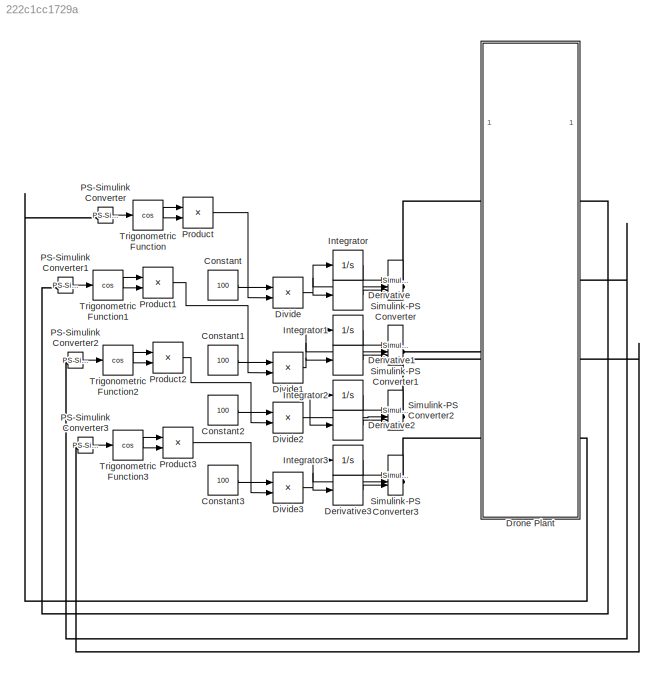
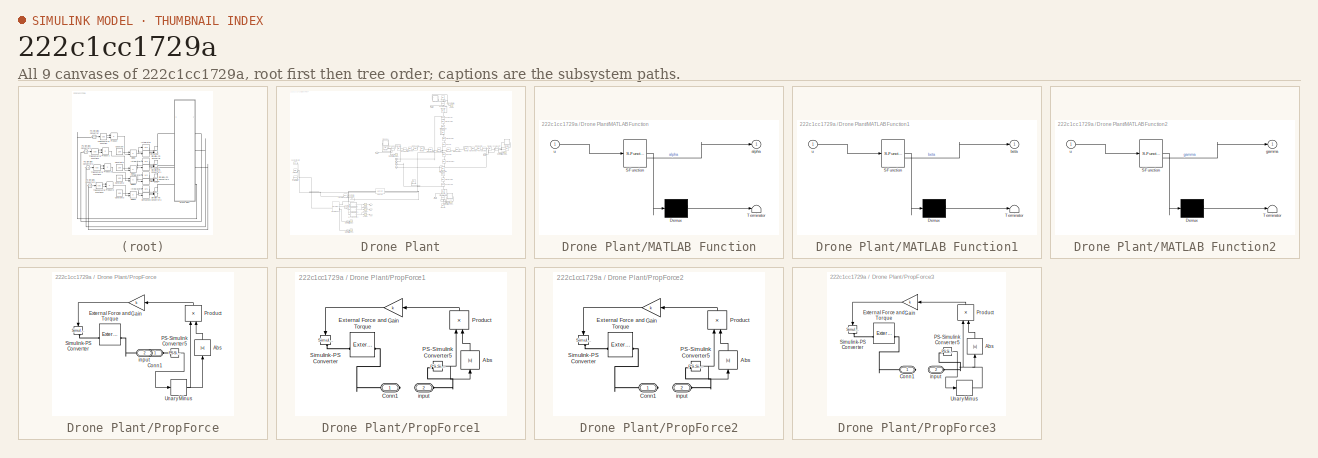
[diagram: thumbnail index - all 9 canvases of the model, root first then tree order]
MODEL slx_222c1cc1729a
KIND model
CONFIG AbsTol = auto
CONFIG EnableMultiTasking = off
CONFIG FixedStep = auto
CONFIG MaxStep = auto
CONFIG MinStep = auto
CONFIG RelTol = 1e-3
CONFIG SampleTimeConstraint = Unconstrained
CONFIG SolverName = VariableStepAuto
CONFIG StartTime = 0.0
CONFIG StopTime = 10
BLOCK [Constant] Constant
  Value = 100
BLOCK [Constant] Constant1
  Value = 100
BLOCK [Constant] Constant2
  Value = 100
BLOCK [Constant] Constant3
  Value = 100
BLOCK [Derivative] Derivative
BLOCK [Derivative] Derivative1
BLOCK [Derivative] Derivative2
BLOCK [Derivative] Derivative3
BLOCK [Product] Divide
  Inputs = */
BLOCK [Product] Divide1
  Inputs = */
BLOCK [Product] Divide2
  Inputs = */
BLOCK [Product] Divide3
  Inputs = */
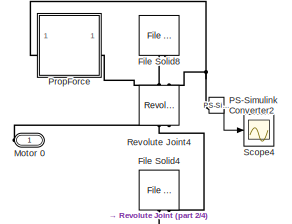
[diagram: Drone Plant - part 1/4, top right region]
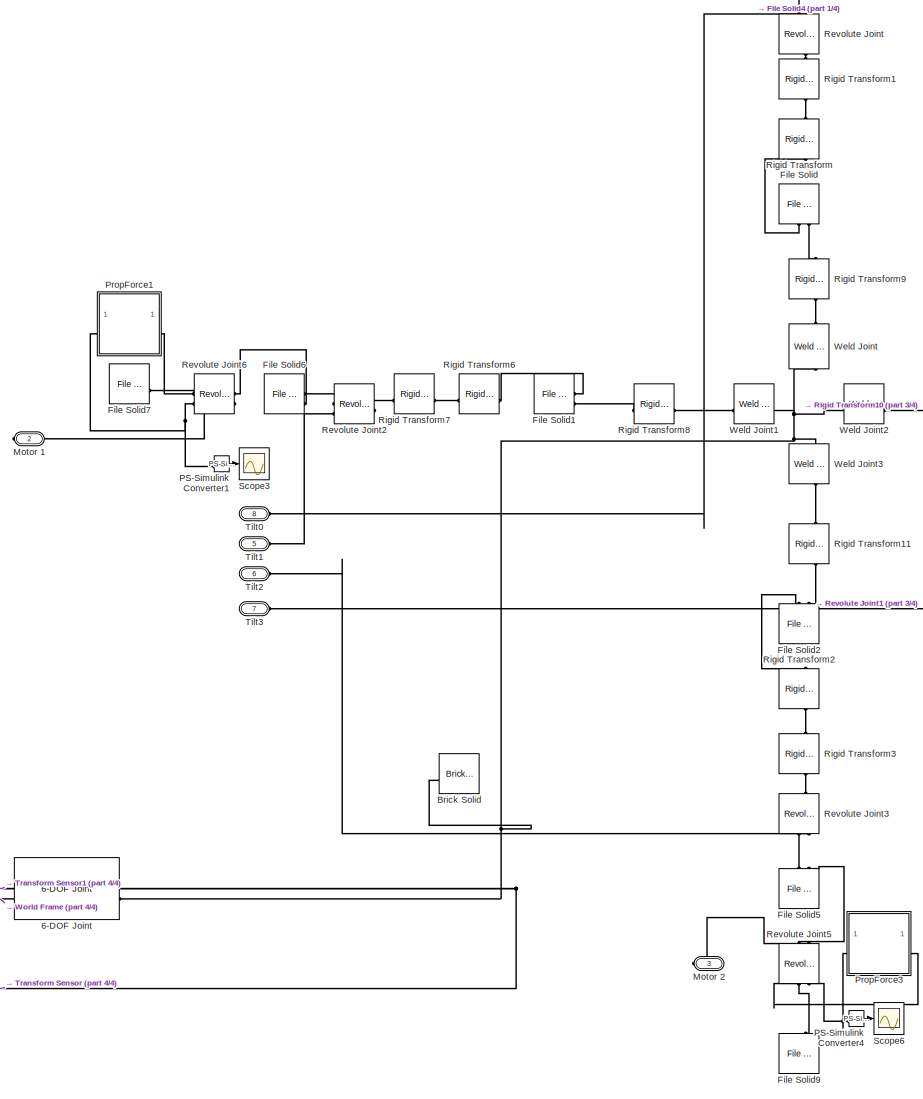
[diagram: Drone Plant - part 2/4, central region]
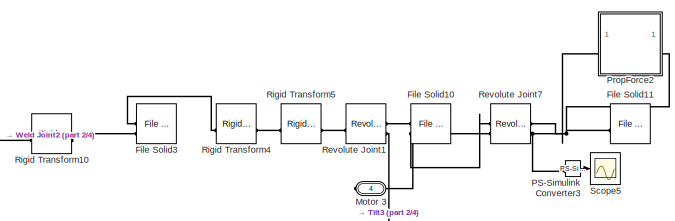
[diagram: Drone Plant - part 3/4, middle right region]
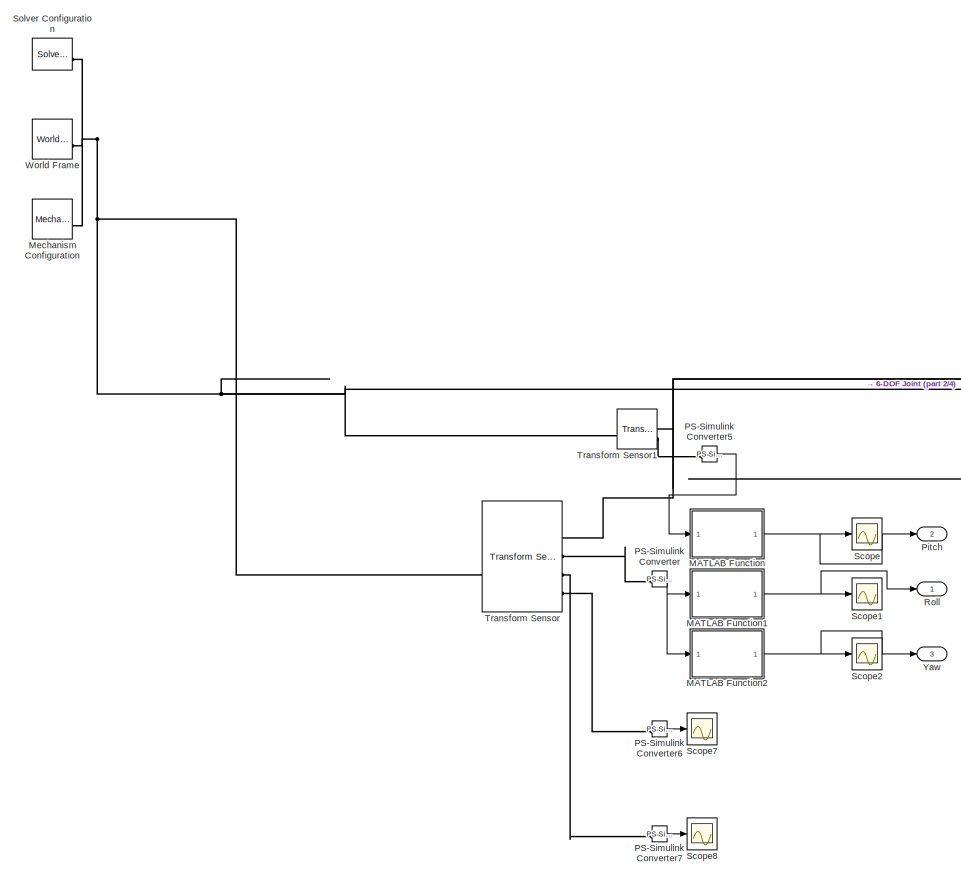
[diagram: Drone Plant - part 4/4, bottom left region]
BLOCK [SubSystem] Drone Plant
  NameLocation = top
BLOCK [Reference] Drone Plant/6-DOF Joint  REF=sm_lib/Joints/6-DOF Joint
  SourceBlock = sm_lib/Joints/6-DOF Joint
  SourceType = 6-DOF Joint
BLOCK [Reference] Drone Plant/Brick Solid  REF=sm_lib/Body Elements/Brick Solid
  SourceBlock = sm_lib/Body Elements/Brick Solid
  SourceType = Brick Solid
BLOCK [Reference] Drone Plant/File Solid  REF=sm_lib/Body Elements/File Solid
  NameLocation = right
  SourceBlock = sm_lib/Body Elements/File Solid
  SourceType = File Solid
BLOCK [Reference] Drone Plant/File Solid1  REF=sm_lib/Body Elements/File Solid
  SourceBlock = sm_lib/Body Elements/File Solid
  SourceType = File Solid
BLOCK [Reference] Drone Plant/File Solid10  REF=sm_lib/Body Elements/File Solid
  SourceBlock = sm_lib/Body Elements/File Solid
  SourceType = File Solid
BLOCK [Reference] Drone Plant/File Solid11  REF=sm_lib/Body Elements/File Solid
  SourceBlock = sm_lib/Body Elements/File Solid
  SourceType = File Solid
BLOCK [Reference] Drone Plant/File Solid2  REF=sm_lib/Body Elements/File Solid
  NameLocation = left
  SourceBlock = sm_lib/Body Elements/File Solid
  SourceType = File Solid
BLOCK [Reference] Drone Plant/File Solid3  REF=sm_lib/Body Elements/File Solid
  SourceBlock = sm_lib/Body Elements/File Solid
  SourceType = File Solid
BLOCK [Reference] Drone Plant/File Solid4  REF=sm_lib/Body Elements/File Solid
  NameLocation = right
  SourceBlock = sm_lib/Body Elements/File Solid
  SourceType = File Solid
BLOCK [Reference] Drone Plant/File Solid5  REF=sm_lib/Body Elements/File Solid
  NameLocation = left
  SourceBlock = sm_lib/Body Elements/File Solid
  SourceType = File Solid
BLOCK [Reference] Drone Plant/File Solid6  REF=sm_lib/Body Elements/File Solid
  NameLocation = top
  SourceBlock = sm_lib/Body Elements/File Solid
  SourceType = File Solid
BLOCK [Reference] Drone Plant/File Solid7  REF=sm_lib/Body Elements/File Solid
  NameLocation = top
  SourceBlock = sm_lib/Body Elements/File Solid
  SourceType = File Solid
BLOCK [Reference] Drone Plant/File Solid8  REF=sm_lib/Body Elements/File Solid
  NameLocation = right
  SourceBlock = sm_lib/Body Elements/File Solid
  SourceType = File Solid
BLOCK [Reference] Drone Plant/File Solid9  REF=sm_lib/Body Elements/File Solid
  NameLocation = left
  SourceBlock = sm_lib/Body Elements/File Solid
  SourceType = File Solid
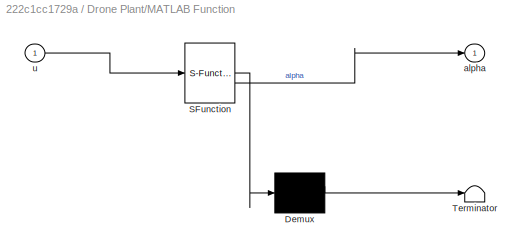
BLOCK [SubSystem] Drone Plant/MATLAB Function
  ErrorFcn = Stateflow.Translate.translate
  LibrarySourceBlock = simulink/User-Defined\nFunctions/MATLAB Function
  PermitHierarchicalResolution = ExplicitOnly
  SFBlockType = MATLAB Function
  TreatAsAtomicUnit = on
BLOCK [Demux] Drone Plant/MATLAB Function/ Demux 
  Outputs = 1
BLOCK [S-Function] Drone Plant/MATLAB Function/ SFunction 
  EnableBusSupport = on
  FunctionName = sf_sfun
  PortCounts = [1 2]
  SFcnIsStateOwnerBlock = off
  SFunctionDeploymentMode = off
  Tag = Stateflow S-Function 2
BLOCK [Terminator] Drone Plant/MATLAB Function/ Terminator 
BLOCK [Outport] Drone Plant/MATLAB Function/alpha
BLOCK [Inport] Drone Plant/MATLAB Function/u
BLOCK [SubSystem] Drone Plant/MATLAB Function1
  ErrorFcn = Stateflow.Translate.translate
  LibrarySourceBlock = simulink/User-Defined\nFunctions/MATLAB Function
  PermitHierarchicalResolution = ExplicitOnly
  SFBlockType = MATLAB Function
  TreatAsAtomicUnit = on
BLOCK [Demux] Drone Plant/MATLAB Function1/ Demux 
  Outputs = 1
BLOCK [S-Function] Drone Plant/MATLAB Function1/ SFunction 
  EnableBusSupport = on
  FunctionName = sf_sfun
  PortCounts = [1 2]
  SFcnIsStateOwnerBlock = off
  SFunctionDeploymentMode = off
  Tag = Stateflow S-Function 1
BLOCK [Terminator] Drone Plant/MATLAB Function1/ Terminator 
BLOCK [Outport] Drone Plant/MATLAB Function1/beta
BLOCK [Inport] Drone Plant/MATLAB Function1/u
BLOCK [SubSystem] Drone Plant/MATLAB Function2
  ErrorFcn = Stateflow.Translate.translate
  LibrarySourceBlock = simulink/User-Defined\nFunctions/MATLAB Function
  PermitHierarchicalResolution = ExplicitOnly
  SFBlockType = MATLAB Function
  TreatAsAtomicUnit = on
BLOCK [Demux] Drone Plant/MATLAB Function2/ Demux 
  Outputs = 1
BLOCK [S-Function] Drone Plant/MATLAB Function2/ SFunction 
  EnableBusSupport = on
  FunctionName = sf_sfun
  PortCounts = [1 2]
  SFcnIsStateOwnerBlock = off
  SFunctionDeploymentMode = off
  Tag = Stateflow S-Function 3
BLOCK [Terminator] Drone Plant/MATLAB Function2/ Terminator 
BLOCK [Outport] Drone Plant/MATLAB Function2/gamma
BLOCK [Inport] Drone Plant/MATLAB Function2/u
BLOCK [Reference] Drone Plant/Mechanism Configuration  REF=sm_lib/Utilities/Mechanism
Configuration
  SourceBlock = sm_lib/Utilities/Mechanism\nConfiguration
  SourceType = Mechanism\nConfiguration
BLOCK [PMIOPort] Drone Plant/Motor 0
  Side = Right
BLOCK [PMIOPort] Drone Plant/Motor 1
  Port = 2
  Side = Right
BLOCK [PMIOPort] Drone Plant/Motor 2
  Port = 3
  Side = Right
BLOCK [PMIOPort] Drone Plant/Motor 3
  Port = 4
  Side = Right
BLOCK [Reference] Drone Plant/PS-Simulink Converter  REF=nesl_utility/PS-Simulink
Converter
  SourceBlock = nesl_utility/PS-Simulink\nConverter
  SourceType = PS-Simulink\nConverter
BLOCK [Reference] Drone Plant/PS-Simulink Converter1  REF=nesl_utility/PS-Simulink
Converter
  SourceBlock = nesl_utility/PS-Simulink\nConverter
  SourceType = PS-Simulink\nConverter
BLOCK [Reference] Drone Plant/PS-Simulink Converter2  REF=nesl_utility/PS-Simulink
Converter
  SourceBlock = nesl_utility/PS-Simulink\nConverter
  SourceType = PS-Simulink\nConverter
BLOCK [Reference] Drone Plant/PS-Simulink Converter3  REF=nesl_utility/PS-Simulink
Converter
  SourceBlock = nesl_utility/PS-Simulink\nConverter
  SourceType = PS-Simulink\nConverter
BLOCK [Reference] Drone Plant/PS-Simulink Converter4  REF=nesl_utility/PS-Simulink
Converter
  SourceBlock = nesl_utility/PS-Simulink\nConverter
  SourceType = PS-Simulink\nConverter
BLOCK [Reference] Drone Plant/PS-Simulink Converter5  REF=nesl_utility/PS-Simulink
Converter
  SourceBlock = nesl_utility/PS-Simulink\nConverter
  SourceType = PS-Simulink\nConverter
BLOCK [Reference] Drone Plant/PS-Simulink Converter6  REF=nesl_utility/PS-Simulink
Converter
  SourceBlock = nesl_utility/PS-Simulink\nConverter
  SourceType = PS-Simulink\nConverter
BLOCK [Reference] Drone Plant/PS-Simulink Converter7  REF=nesl_utility/PS-Simulink
Converter
  SourceBlock = nesl_utility/PS-Simulink\nConverter
  SourceType = PS-Simulink\nConverter
BLOCK [Outport] Drone Plant/Pitch
  Port = 2
BLOCK [SubSystem] Drone Plant/PropForce
BLOCK [Abs] Drone Plant/PropForce/Abs
  NameLocation = right
  SaturateOnIntegerOverflow = off
BLOCK [PMIOPort] Drone Plant/PropForce/Conn1
  Side = Right
BLOCK [Reference] Drone Plant/PropForce/External Force and Torque  REF=sm_lib/Forces and
Torques/External Force
and Torque
  SourceBlock = sm_lib/Forces and\nTorques/External Force\nand Torque
  SourceType = External Force\nand Torque
BLOCK [Gain] Drone Plant/PropForce/Gain
  Gain = k
  NameLocation = top
BLOCK [Reference] Drone Plant/PropForce/PS-Simulink Converter5  REF=nesl_utility/PS-Simulink
Converter
  SourceBlock = nesl_utility/PS-Simulink\nConverter
  SourceType = PS-Simulink\nConverter
BLOCK [Product] Drone Plant/PropForce/Product
  NameLocation = right
BLOCK [Reference] Drone Plant/PropForce/Simulink-PS Converter  REF=nesl_utility/Simulink-PS
Converter
  NameLocation = left
  SourceBlock = nesl_utility/Simulink-PS\nConverter
  SourceType = Simulink-PS\nConverter
BLOCK [UnaryMinus] Drone Plant/PropForce/Unary Minus
BLOCK [PMIOPort] Drone Plant/PropForce/input
  Port = 2
  Side = Left
BLOCK [SubSystem] Drone Plant/PropForce1
BLOCK [Abs] Drone Plant/PropForce1/Abs
  NameLocation = right
  SaturateOnIntegerOverflow = off
BLOCK [PMIOPort] Drone Plant/PropForce1/Conn1
  Side = Right
BLOCK [Reference] Drone Plant/PropForce1/External Force and Torque  REF=sm_lib/Forces and
Torques/External Force
and Torque
  SourceBlock = sm_lib/Forces and\nTorques/External Force\nand Torque
  SourceType = External Force\nand Torque
BLOCK [Gain] Drone Plant/PropForce1/Gain
  Gain = k
  NameLocation = top
BLOCK [Reference] Drone Plant/PropForce1/PS-Simulink Converter5  REF=nesl_utility/PS-Simulink
Converter
  SourceBlock = nesl_utility/PS-Simulink\nConverter
  SourceType = PS-Simulink\nConverter
BLOCK [Product] Drone Plant/PropForce1/Product
  NameLocation = right
BLOCK [Reference] Drone Plant/PropForce1/Simulink-PS Converter  REF=nesl_utility/Simulink-PS
Converter
  NameLocation = left
  SourceBlock = nesl_utility/Simulink-PS\nConverter
  SourceType = Simulink-PS\nConverter
BLOCK [PMIOPort] Drone Plant/PropForce1/input
  Port = 2
  Side = Left
BLOCK [SubSystem] Drone Plant/PropForce2
BLOCK [Abs] Drone Plant/PropForce2/Abs
  NameLocation = right
  SaturateOnIntegerOverflow = off
BLOCK [PMIOPort] Drone Plant/PropForce2/Conn1
  Side = Right
BLOCK [Reference] Drone Plant/PropForce2/External Force and Torque  REF=sm_lib/Forces and
Torques/External Force
and Torque
  SourceBlock = sm_lib/Forces and\nTorques/External Force\nand Torque
  SourceType = External Force\nand Torque
BLOCK [Gain] Drone Plant/PropForce2/Gain
  Gain = k
  NameLocation = top
BLOCK [Reference] Drone Plant/PropForce2/PS-Simulink Converter5  REF=nesl_utility/PS-Simulink
Converter
  SourceBlock = nesl_utility/PS-Simulink\nConverter
  SourceType = PS-Simulink\nConverter
BLOCK [Product] Drone Plant/PropForce2/Product
  NameLocation = right
BLOCK [Reference] Drone Plant/PropForce2/Simulink-PS Converter  REF=nesl_utility/Simulink-PS
Converter
  NameLocation = left
  SourceBlock = nesl_utility/Simulink-PS\nConverter
  SourceType = Simulink-PS\nConverter
BLOCK [PMIOPort] Drone Plant/PropForce2/input
  Port = 2
  Side = Left
BLOCK [SubSystem] Drone Plant/PropForce3
BLOCK [Abs] Drone Plant/PropForce3/Abs
  NameLocation = right
  SaturateOnIntegerOverflow = off
BLOCK [PMIOPort] Drone Plant/PropForce3/Conn1
  Side = Right
BLOCK [Reference] Drone Plant/PropForce3/External Force and Torque  REF=sm_lib/Forces and
Torques/External Force
and Torque
  SourceBlock = sm_lib/Forces and\nTorques/External Force\nand Torque
  SourceType = External Force\nand Torque
BLOCK [Gain] Drone Plant/PropForce3/Gain
  Gain = k
  NameLocation = top
BLOCK [Reference] Drone Plant/PropForce3/PS-Simulink Converter5  REF=nesl_utility/PS-Simulink
Converter
  SourceBlock = nesl_utility/PS-Simulink\nConverter
  SourceType = PS-Simulink\nConverter
BLOCK [Product] Drone Plant/PropForce3/Product
  NameLocation = right
BLOCK [Reference] Drone Plant/PropForce3/Simulink-PS Converter  REF=nesl_utility/Simulink-PS
Converter
  NameLocation = left
  SourceBlock = nesl_utility/Simulink-PS\nConverter
  SourceType = Simulink-PS\nConverter
BLOCK [UnaryMinus] Drone Plant/PropForce3/Unary Minus
BLOCK [PMIOPort] Drone Plant/PropForce3/input
  Port = 2
  Side = Left
BLOCK [Reference] Drone Plant/Revolute Joint  REF=sm_lib/Joints/Revolute Joint
  NameLocation = right
  SourceBlock = sm_lib/Joints/Revolute Joint
  SourceType = Revolute Joint
BLOCK [Reference] Drone Plant/Revolute Joint1  REF=sm_lib/Joints/Revolute Joint
  SourceBlock = sm_lib/Joints/Revolute Joint
  SourceType = Revolute Joint
BLOCK [Reference] Drone Plant/Revolute Joint2  REF=sm_lib/Joints/Revolute Joint
  NameLocation = top
  SourceBlock = sm_lib/Joints/Revolute Joint
  SourceType = Revolute Joint
BLOCK [Reference] Drone Plant/Revolute Joint3  REF=sm_lib/Joints/Revolute Joint
  NameLocation = left
  SourceBlock = sm_lib/Joints/Revolute Joint
  SourceType = Revolute Joint
BLOCK [Reference] Drone Plant/Revolute Joint4  REF=sm_lib/Joints/Revolute Joint
  NameLocation = right
  SourceBlock = sm_lib/Joints/Revolute Joint
  SourceType = Revolute Joint
BLOCK [Reference] Drone Plant/Revolute Joint5  REF=sm_lib/Joints/Revolute Joint
  NameLocation = left
  SourceBlock = sm_lib/Joints/Revolute Joint
  SourceType = Revolute Joint
BLOCK [Reference] Drone Plant/Revolute Joint6  REF=sm_lib/Joints/Revolute Joint
  NameLocation = top
  SourceBlock = sm_lib/Joints/Revolute Joint
  SourceType = Revolute Joint
BLOCK [Reference] Drone Plant/Revolute Joint7  REF=sm_lib/Joints/Revolute Joint
  SourceBlock = sm_lib/Joints/Revolute Joint
  SourceType = Revolute Joint
BLOCK [Reference] Drone Plant/Rigid Transform  REF=sm_lib/Frames and
Transforms/Rigid
Transform
  NameLocation = right
  SourceBlock = sm_lib/Frames and\nTransforms/Rigid\nTransform
  SourceType = Rigid\nTransform
BLOCK [Reference] Drone Plant/Rigid Transform1  REF=sm_lib/Frames and
Transforms/Rigid
Transform
  NameLocation = right
  SourceBlock = sm_lib/Frames and\nTransforms/Rigid\nTransform
  SourceType = Rigid\nTransform
BLOCK [Reference] Drone Plant/Rigid Transform10  REF=sm_lib/Frames and
Transforms/Rigid
Transform
  SourceBlock = sm_lib/Frames and\nTransforms/Rigid\nTransform
  SourceType = Rigid\nTransform
BLOCK [Reference] Drone Plant/Rigid Transform11  REF=sm_lib/Frames and
Transforms/Rigid
Transform
  NameLocation = left
  SourceBlock = sm_lib/Frames and\nTransforms/Rigid\nTransform
  SourceType = Rigid\nTransform
BLOCK [Reference] Drone Plant/Rigid Transform2  REF=sm_lib/Frames and
Transforms/Rigid
Transform
  NameLocation = left
  SourceBlock = sm_lib/Frames and\nTransforms/Rigid\nTransform
  SourceType = Rigid\nTransform
BLOCK [Reference] Drone Plant/Rigid Transform3  REF=sm_lib/Frames and
Transforms/Rigid
Transform
  NameLocation = left
  SourceBlock = sm_lib/Frames and\nTransforms/Rigid\nTransform
  SourceType = Rigid\nTransform
BLOCK [Reference] Drone Plant/Rigid Transform4  REF=sm_lib/Frames and
Transforms/Rigid
Transform
  SourceBlock = sm_lib/Frames and\nTransforms/Rigid\nTransform
  SourceType = Rigid\nTransform
BLOCK [Reference] Drone Plant/Rigid Transform5  REF=sm_lib/Frames and
Transforms/Rigid
Transform
  SourceBlock = sm_lib/Frames and\nTransforms/Rigid\nTransform
  SourceType = Rigid\nTransform
BLOCK [Reference] Drone Plant/Rigid Transform6  REF=sm_lib/Frames and
Transforms/Rigid
Transform
  NameLocation = top
  SourceBlock = sm_lib/Frames and\nTransforms/Rigid\nTransform
  SourceType = Rigid\nTransform
BLOCK [Reference] Drone Plant/Rigid Transform7  REF=sm_lib/Frames and
Transforms/Rigid
Transform
  NameLocation = top
  SourceBlock = sm_lib/Frames and\nTransforms/Rigid\nTransform
  SourceType = Rigid\nTransform
BLOCK [Reference] Drone Plant/Rigid Transform8  REF=sm_lib/Frames and
Transforms/Rigid
Transform
  NameLocation = top
  SourceBlock = sm_lib/Frames and\nTransforms/Rigid\nTransform
  SourceType = Rigid\nTransform
BLOCK [Reference] Drone Plant/Rigid Transform9  REF=sm_lib/Frames and
Transforms/Rigid
Transform
  NameLocation = right
  SourceBlock = sm_lib/Frames and\nTransforms/Rigid\nTransform
  SourceType = Rigid\nTransform
BLOCK [Outport] Drone Plant/Roll
BLOCK [Scope] Drone Plant/Scope
  Floating = off
  NumInputPorts = 1
  ScopeSpecificationString = Simulink.scopes.TimeScopeBlockCfg('CurrentConfiguration', extmgr.ConfigurationSet(extmgr.Configuration('Core','General UI',true),extmgr.Configuration('Core','Source UI',true),extmgr.Configuration('Sources','WiredSimulink',true),extmgr.Configuration('Visuals','Time Domain',true,'SerializedDisplays',{struct('MinYLimReal','-18.76626','MaxYLimReal','17.41913','YLabelReal','','MinYLimMag','0.00000','Ma...<+1424ch>
BLOCK [Scope] Drone Plant/Scope1
  Floating = off
  NumInputPorts = 1
  ScopeSpecificationString = Simulink.scopes.TimeScopeBlockCfg('CurrentConfiguration', extmgr.ConfigurationSet(extmgr.Configuration('Core','General UI',true),extmgr.Configuration('Core','Source UI',true),extmgr.Configuration('Sources','WiredSimulink',true,'DataLoggingVariableName','ScopeData1'),extmgr.Configuration('Visuals','Time Domain',true,'SerializedDisplays',{struct('MinYLimReal','-24.01205','MaxYLimReal','10.66529','YL...<+1462ch>
BLOCK [Scope] Drone Plant/Scope2
  Floating = off
  NumInputPorts = 1
  ScopeSpecificationString = Simulink.scopes.TimeScopeBlockCfg('CurrentConfiguration', extmgr.ConfigurationSet(extmgr.Configuration('Core','General UI',true),extmgr.Configuration('Core','Source UI',true),extmgr.Configuration('Sources','WiredSimulink',true,'DataLoggingVariableName','ScopeData2'),extmgr.Configuration('Visuals','Time Domain',true,'SerializedDisplays',{struct('MinYLimReal','-13.18037','MaxYLimReal','1.64034','YLa...<+1459ch>
BLOCK [Scope] Drone Plant/Scope3
  Floating = off
  NumInputPorts = 1
  ScopeSpecificationString = Simulink.scopes.TimeScopeBlockCfg('CurrentConfiguration', extmgr.ConfigurationSet(extmgr.Configuration('Core','General UI',true),extmgr.Configuration('Core','Source UI',true),extmgr.Configuration('Sources','WiredSimulink',true,'DataLoggingVariableName','ScopeData3'),extmgr.Configuration('Visuals','Time Domain',true,'SerializedDisplays',{struct('MinYLimReal','100.03008','MaxYLimReal','100.03051','Y...<+1430ch>
BLOCK [Scope] Drone Plant/Scope4
  Floating = off
  NumInputPorts = 1
  ScopeSpecificationString = Simulink.scopes.TimeScopeBlockCfg('CurrentConfiguration', extmgr.ConfigurationSet(extmgr.Configuration('Core','General UI',true),extmgr.Configuration('Core','Source UI',true),extmgr.Configuration('Sources','WiredSimulink',true,'DataLoggingVariableName','ScopeData4'),extmgr.Configuration('Visuals','Time Domain',true,'SerializedDisplays',{struct('MinYLimReal','100.03009','MaxYLimReal','100.03051','Y...<+1430ch>
BLOCK [Scope] Drone Plant/Scope5
  Floating = off
  NumInputPorts = 1
  ScopeSpecificationString = Simulink.scopes.TimeScopeBlockCfg('CurrentConfiguration', extmgr.ConfigurationSet(extmgr.Configuration('Core','General UI',true),extmgr.Configuration('Core','Source UI',true),extmgr.Configuration('Sources','WiredSimulink',true,'DataLoggingVariableName','ScopeData5'),extmgr.Configuration('Visuals','Time Domain',true,'SerializedDisplays',{struct('MinYLimReal','-14.36006','MaxYLimReal','129.24057','Y...<+1428ch>
BLOCK [Scope] Drone Plant/Scope6
  Floating = off
  NumInputPorts = 1
  ScopeSpecificationString = Simulink.scopes.TimeScopeBlockCfg('CurrentConfiguration', extmgr.ConfigurationSet(extmgr.Configuration('Core','General UI',true),extmgr.Configuration('Core','Source UI',true),extmgr.Configuration('Sources','WiredSimulink',true,'DataLoggingVariableName','ScopeData6'),extmgr.Configuration('Visuals','Time Domain',true,'SerializedDisplays',{struct('MinYLimReal','-16.75','MaxYLimReal','150.75','YLabelR...<+1408ch>
BLOCK [Scope] Drone Plant/Scope7
  Floating = off
  NumInputPorts = 1
  ScopeSpecificationString = Simulink.scopes.TimeScopeBlockCfg('CurrentConfiguration', extmgr.ConfigurationSet(extmgr.Configuration('Core','General UI',true),extmgr.Configuration('Core','Source UI',true),extmgr.Configuration('Sources','WiredSimulink',true,'DataLoggingVariableName','ScopeData1'),extmgr.Configuration('Visuals','Time Domain',true,'SerializedDisplays',{struct('MinYLimReal','-13.18037','MaxYLimReal','1.64034','YLa...<+1465ch>
BLOCK [Scope] Drone Plant/Scope8
  Floating = off
  NumInputPorts = 1
  ScopeSpecificationString = Simulink.scopes.TimeScopeBlockCfg('CurrentConfiguration', extmgr.ConfigurationSet(extmgr.Configuration('Core','General UI',true),extmgr.Configuration('Core','Source UI',true),extmgr.Configuration('Sources','WiredSimulink',true,'DataLoggingVariableName','ScopeData2'),extmgr.Configuration('Visuals','Time Domain',true,'SerializedDisplays',{struct('MinYLimReal','-13.18037','MaxYLimReal','1.64034','YLa...<+1465ch>
BLOCK [Reference] Drone Plant/Solver Configuration  REF=nesl_utility/Solver
Configuration
  SourceBlock = nesl_utility/Solver\nConfiguration
  SourceType = Solver\nConfiguration
BLOCK [PMIOPort] Drone Plant/Tilt0
  Port = 8
  Side = Left
BLOCK [PMIOPort] Drone Plant/Tilt1
  Port = 5
  Side = Left
BLOCK [PMIOPort] Drone Plant/Tilt2
  Port = 6
  Side = Left
BLOCK [PMIOPort] Drone Plant/Tilt3
  Port = 7
  Side = Left
BLOCK [Reference] Drone Plant/Transform Sensor  REF=sm_lib/Frames and
Transforms/Transform
Sensor
  SourceBlock = sm_lib/Frames and\nTransforms/Transform\nSensor
  SourceType = Transform\nSensor
BLOCK [Reference] Drone Plant/Transform Sensor1  REF=sm_lib/Frames and
Transforms/Transform
Sensor
  SourceBlock = sm_lib/Frames and\nTransforms/Transform\nSensor
  SourceType = Transform\nSensor
BLOCK [Reference] Drone Plant/Weld Joint  REF=sm_lib/Joints/Weld Joint
  NameLocation = right
  SourceBlock = sm_lib/Joints/Weld Joint
  SourceType = Weld Joint
BLOCK [Reference] Drone Plant/Weld Joint1  REF=sm_lib/Joints/Weld Joint
  NameLocation = top
  SourceBlock = sm_lib/Joints/Weld Joint
  SourceType = Weld Joint
BLOCK [Reference] Drone Plant/Weld Joint2  REF=sm_lib/Joints/Weld Joint
  SourceBlock = sm_lib/Joints/Weld Joint
  SourceType = Weld Joint
BLOCK [Reference] Drone Plant/Weld Joint3  REF=sm_lib/Joints/Weld Joint
  NameLocation = left
  SourceBlock = sm_lib/Joints/Weld Joint
  SourceType = Weld Joint
BLOCK [Reference] Drone Plant/World Frame  REF=sm_lib/Frames and
Transforms/World Frame
  SourceBlock = sm_lib/Frames and\nTransforms/World Frame
  SourceType = World Frame
BLOCK [Outport] Drone Plant/Yaw
  Port = 3
BLOCK [Integrator] Integrator
BLOCK [Integrator] Integrator1
BLOCK [Integrator] Integrator2
BLOCK [Integrator] Integrator3
BLOCK [Reference] PS-Simulink Converter  REF=nesl_utility/PS-Simulink
Converter
  SourceBlock = nesl_utility/PS-Simulink\nConverter
  SourceType = PS-Simulink\nConverter
BLOCK [Reference] PS-Simulink Converter1  REF=nesl_utility/PS-Simulink
Converter
  SourceBlock = nesl_utility/PS-Simulink\nConverter
  SourceType = PS-Simulink\nConverter
BLOCK [Reference] PS-Simulink Converter2  REF=nesl_utility/PS-Simulink
Converter
  SourceBlock = nesl_utility/PS-Simulink\nConverter
  SourceType = PS-Simulink\nConverter
BLOCK [Reference] PS-Simulink Converter3  REF=nesl_utility/PS-Simulink
Converter
  SourceBlock = nesl_utility/PS-Simulink\nConverter
  SourceType = PS-Simulink\nConverter
BLOCK [Product] Product
BLOCK [Product] Product1
BLOCK [Product] Product2
BLOCK [Product] Product3
BLOCK [Reference] Simulink-PS Converter  REF=nesl_utility/Simulink-PS
Converter
  SourceBlock = nesl_utility/Simulink-PS\nConverter
  SourceType = Simulink-PS\nConverter
BLOCK [Reference] Simulink-PS Converter1  REF=nesl_utility/Simulink-PS
Converter
  SourceBlock = nesl_utility/Simulink-PS\nConverter
  SourceType = Simulink-PS\nConverter
BLOCK [Reference] Simulink-PS Converter2  REF=nesl_utility/Simulink-PS
Converter
  SourceBlock = nesl_utility/Simulink-PS\nConverter
  SourceType = Simulink-PS\nConverter
BLOCK [Reference] Simulink-PS Converter3  REF=nesl_utility/Simulink-PS
Converter
  SourceBlock = nesl_utility/Simulink-PS\nConverter
  SourceType = Simulink-PS\nConverter
BLOCK [Trigonometry] Trigonometric Function
  Operator = cos
BLOCK [Trigonometry] Trigonometric Function1
  Operator = cos
BLOCK [Trigonometry] Trigonometric Function2
  Operator = cos
BLOCK [Trigonometry] Trigonometric Function3
  Operator = cos
LINE Constant1:1 -> Divide1:1
LINE Constant2:1 -> Divide2:1
LINE Constant3:1 -> Divide3:1
LINE Constant:1 -> Divide:1
LINE Derivative1:1 -> Simulink-PS Converter1:3
LINE Derivative2:1 -> Simulink-PS Converter2:3
LINE Derivative3:1 -> Simulink-PS Converter3:3
LINE Derivative:1 -> Simulink-PS Converter:3
NET Divide1:1 -> Derivative1:1, Integrator1:1, Simulink-PS Converter1:2
NET Divide2:1 -> Derivative2:1, Integrator2:1, Simulink-PS Converter2:2
NET Divide3:1 -> Derivative3:1, Integrator3:1, Simulink-PS Converter3:2
NET Divide:1 -> Derivative:1, Integrator:1, Simulink-PS Converter:2
NET Drone Plant/MATLAB Function1:1 -> Drone Plant/Roll:1, Drone Plant/Scope1:1
NET Drone Plant/MATLAB Function2:1 -> Drone Plant/Scope2:1, Drone Plant/Yaw:1
NET Drone Plant/MATLAB Function:1 -> Drone Plant/Pitch:1, Drone Plant/Scope:1
LINE Drone Plant/PS-Simulink Converter1:1 -> Drone Plant/Scope3:1
LINE Drone Plant/PS-Simulink Converter2:1 -> Drone Plant/Scope4:1
LINE Drone Plant/PS-Simulink Converter3:1 -> Drone Plant/Scope5:1
LINE Drone Plant/PS-Simulink Converter4:1 -> Drone Plant/Scope6:1
LINE Drone Plant/PS-Simulink Converter5:1 -> Drone Plant/MATLAB Function:1
LINE Drone Plant/PS-Simulink Converter6:1 -> Drone Plant/Scope7:1
LINE Drone Plant/PS-Simulink Converter7:1 -> Drone Plant/Scope8:1
NET Drone Plant/PS-Simulink Converter:1 -> Drone Plant/MATLAB Function1:1, Drone Plant/MATLAB Function2:1
LINE Drone Plant/PropForce/Abs:1 -> Drone Plant/PropForce/Product:2
LINE Drone Plant/PropForce/Gain:1 -> Drone Plant/PropForce/Simulink-PS Converter:1
LINE Drone Plant/PropForce/PS-Simulink Converter5:1 -> Drone Plant/PropForce/Unary Minus:1
LINE Drone Plant/PropForce/Product:1 -> Drone Plant/PropForce/Gain:1
NET Drone Plant/PropForce/Unary Minus:1 -> Drone Plant/PropForce/Abs:1, Drone Plant/PropForce/Product:1
LINE Drone Plant/PropForce1/Abs:1 -> Drone Plant/PropForce1/Product:2
LINE Drone Plant/PropForce1/Gain:1 -> Drone Plant/PropForce1/Simulink-PS Converter:1
NET Drone Plant/PropForce1/PS-Simulink Converter5:1 -> Drone Plant/PropForce1/Abs:1, Drone Plant/PropForce1/Product:1
LINE Drone Plant/PropForce1/Product:1 -> Drone Plant/PropForce1/Gain:1
LINE Drone Plant/PropForce2/Abs:1 -> Drone Plant/PropForce2/Product:2
LINE Drone Plant/PropForce2/Gain:1 -> Drone Plant/PropForce2/Simulink-PS Converter:1
NET Drone Plant/PropForce2/PS-Simulink Converter5:1 -> Drone Plant/PropForce2/Abs:1, Drone Plant/PropForce2/Product:1
LINE Drone Plant/PropForce2/Product:1 -> Drone Plant/PropForce2/Gain:1
LINE Drone Plant/PropForce3/Abs:1 -> Drone Plant/PropForce3/Product:2
LINE Drone Plant/PropForce3/Gain:1 -> Drone Plant/PropForce3/Simulink-PS Converter:1
LINE Drone Plant/PropForce3/PS-Simulink Converter5:1 -> Drone Plant/PropForce3/Unary Minus:1
LINE Drone Plant/PropForce3/Product:1 -> Drone Plant/PropForce3/Gain:1
NET Drone Plant/PropForce3/Unary Minus:1 -> Drone Plant/PropForce3/Abs:1, Drone Plant/PropForce3/Product:1
LINE Integrator1:1 -> Simulink-PS Converter1:1
LINE Integrator2:1 -> Simulink-PS Converter2:1
LINE Integrator3:1 -> Simulink-PS Converter3:1
LINE Integrator:1 -> Simulink-PS Converter:1
LINE PS-Simulink Converter1:1 -> Trigonometric Function1:1
LINE PS-Simulink Converter2:1 -> Trigonometric Function2:1
LINE PS-Simulink Converter3:1 -> Trigonometric Function3:1
LINE PS-Simulink Converter:1 -> Trigonometric Function:1
LINE Product1:1 -> Divide1:2
LINE Product2:1 -> Divide2:2
LINE Product3:1 -> Divide3:2
LINE Product:1 -> Divide:2
NET Trigonometric Function1:1 -> Product1:1, Product1:2
NET Trigonometric Function2:1 -> Product2:1, Product2:2
NET Trigonometric Function3:1 -> Product3:1, Product3:2
NET Trigonometric Function:1 -> Product:1, Product:2
PNET net1: Drone Plant/6-DOF Joint:LConn1 -- Drone Plant/Mechanism Configuration:RConn1 -- Drone Plant/Solver Configuration:RConn1 -- Drone Plant/Transform Sensor1:LConn1 -- Drone Plant/Transform Sensor:LConn1 -- Drone Plant/World Frame:RConn1
PNET net2: Drone Plant/6-DOF Joint:RConn1 -- Drone Plant/Brick Solid:LConn1 -- Drone Plant/Transform Sensor1:RConn1 -- Drone Plant/Transform Sensor:RConn1 -- Drone Plant/Weld Joint1:LConn1 -- Drone Plant/Weld Joint2:LConn1 -- Drone Plant/Weld Joint3:LConn1 -- Drone Plant/Weld Joint:LConn1
PLINE Drone Plant/File Solid10:LConn1 -- Drone Plant/Revolute Joint1:RConn1
PLINE Drone Plant/File Solid10:LConn2 -- Drone Plant/Revolute Joint7:LConn1
PNET net3: Drone Plant/File Solid11:LConn1 -- Drone Plant/PropForce2:RConn1 -- Drone Plant/Revolute Joint7:RConn1
PLINE Drone Plant/File Solid1:LConn1 -- Drone Plant/Rigid Transform6:LConn1
PLINE Drone Plant/File Solid1:LConn2 -- Drone Plant/Rigid Transform8:RConn1
PLINE Drone Plant/File Solid2:LConn1 -- Drone Plant/Rigid Transform2:LConn1
PLINE Drone Plant/File Solid2:LConn2 -- Drone Plant/Rigid Transform11:RConn1
PLINE Drone Plant/File Solid3:LConn1 -- Drone Plant/Rigid Transform4:LConn1
PLINE Drone Plant/File Solid3:LConn2 -- Drone Plant/Rigid Transform10:RConn1
PLINE Drone Plant/File Solid4:LConn1 -- Drone Plant/Revolute Joint:RConn1
PLINE Drone Plant/File Solid4:LConn2 -- Drone Plant/Revolute Joint4:LConn1
PLINE Drone Plant/File Solid5:LConn1 -- Drone Plant/Revolute Joint3:RConn1
PLINE Drone Plant/File Solid5:LConn2 -- Drone Plant/Revolute Joint5:LConn1
PLINE Drone Plant/File Solid6:LConn1 -- Drone Plant/Revolute Joint2:RConn1
PLINE Drone Plant/File Solid6:LConn2 -- Drone Plant/Revolute Joint6:LConn1
PNET net4: Drone Plant/File Solid7:LConn1 -- Drone Plant/PropForce1:RConn1 -- Drone Plant/Revolute Joint6:RConn1
PNET net5: Drone Plant/File Solid8:LConn1 -- Drone Plant/PropForce:RConn1 -- Drone Plant/Revolute Joint4:RConn1
PNET net6: Drone Plant/File Solid9:LConn1 -- Drone Plant/PropForce3:RConn1 -- Drone Plant/Revolute Joint5:RConn1
PLINE Drone Plant/File Solid:LConn1 -- Drone Plant/Rigid Transform:LConn1
PLINE Drone Plant/File Solid:LConn2 -- Drone Plant/Rigid Transform9:RConn1
PLINE Drone Plant/Motor 0:RConn1 -- Drone Plant/Revolute Joint4:LConn2
PLINE Drone Plant/Motor 1:RConn1 -- Drone Plant/Revolute Joint6:LConn2
PLINE Drone Plant/Motor 2:RConn1 -- Drone Plant/Revolute Joint5:LConn2
PLINE Drone Plant/Motor 3:RConn1 -- Drone Plant/Revolute Joint7:LConn2
PNET net7: Drone Plant/PS-Simulink Converter1:LConn1 -- Drone Plant/PropForce1:LConn1 -- Drone Plant/Revolute Joint6:RConn2
PNET net8: Drone Plant/PS-Simulink Converter2:LConn1 -- Drone Plant/PropForce:LConn1 -- Drone Plant/Revolute Joint4:RConn2
PNET net9: Drone Plant/PS-Simulink Converter3:LConn1 -- Drone Plant/PropForce2:LConn1 -- Drone Plant/Revolute Joint7:RConn2
PNET net10: Drone Plant/PS-Simulink Converter4:LConn1 -- Drone Plant/PropForce3:LConn1 -- Drone Plant/Revolute Joint5:RConn2
PLINE Drone Plant/PS-Simulink Converter5:LConn1 -- Drone Plant/Transform Sensor1:RConn2
PLINE Drone Plant/PS-Simulink Converter6:LConn1 -- Drone Plant/Transform Sensor:RConn4
PLINE Drone Plant/PS-Simulink Converter7:LConn1 -- Drone Plant/Transform Sensor:RConn3
PLINE Drone Plant/PS-Simulink Converter:LConn1 -- Drone Plant/Transform Sensor:RConn2
PLINE Drone Plant/PropForce/Conn1:RConn1 -- Drone Plant/PropForce/External Force and Torque:RConn1
PLINE Drone Plant/PropForce/External Force and Torque:LConn1 -- Drone Plant/PropForce/Simulink-PS Converter:RConn1
PLINE Drone Plant/PropForce/PS-Simulink Converter5:LConn1 -- Drone Plant/PropForce/input:RConn1
PLINE Drone Plant/PropForce1/Conn1:RConn1 -- Drone Plant/PropForce1/External Force and Torque:RConn1
PLINE Drone Plant/PropForce1/External Force and Torque:LConn1 -- Drone Plant/PropForce1/Simulink-PS Converter:RConn1
PLINE Drone Plant/PropForce1/PS-Simulink Converter5:LConn1 -- Drone Plant/PropForce1/input:RConn1
PLINE Drone Plant/PropForce2/Conn1:RConn1 -- Drone Plant/PropForce2/External Force and Torque:RConn1
PLINE Drone Plant/PropForce2/External Force and Torque:LConn1 -- Drone Plant/PropForce2/Simulink-PS Converter:RConn1
PLINE Drone Plant/PropForce2/PS-Simulink Converter5:LConn1 -- Drone Plant/PropForce2/input:RConn1
PLINE Drone Plant/PropForce3/Conn1:RConn1 -- Drone Plant/PropForce3/External Force and Torque:RConn1
PLINE Drone Plant/PropForce3/External Force and Torque:LConn1 -- Drone Plant/PropForce3/Simulink-PS Converter:RConn1
PLINE Drone Plant/PropForce3/PS-Simulink Converter5:LConn1 -- Drone Plant/PropForce3/input:RConn1
PLINE Drone Plant/Revolute Joint1:LConn1 -- Drone Plant/Rigid Transform5:RConn1
PLINE Drone Plant/Revolute Joint1:RConn2 -- Drone Plant/Tilt3:RConn1
PLINE Drone Plant/Revolute Joint2:LConn1 -- Drone Plant/Rigid Transform7:RConn1
PLINE Drone Plant/Revolute Joint2:RConn2 -- Drone Plant/Tilt1:RConn1
PLINE Drone Plant/Revolute Joint3:LConn1 -- Drone Plant/Rigid Transform3:RConn1
PLINE Drone Plant/Revolute Joint3:RConn2 -- Drone Plant/Tilt2:RConn1
PLINE Drone Plant/Revolute Joint:LConn1 -- Drone Plant/Rigid Transform1:RConn1
PLINE Drone Plant/Revolute Joint:RConn2 -- Drone Plant/Tilt0:RConn1
PLINE Drone Plant/Rigid Transform10:LConn1 -- Drone Plant/Weld Joint2:RConn1
PLINE Drone Plant/Rigid Transform11:LConn1 -- Drone Plant/Weld Joint3:RConn1
PLINE Drone Plant/Rigid Transform1:LConn1 -- Drone Plant/Rigid Transform:RConn1
PLINE Drone Plant/Rigid Transform2:RConn1 -- Drone Plant/Rigid Transform3:LConn1
PLINE Drone Plant/Rigid Transform4:RConn1 -- Drone Plant/Rigid Transform5:LConn1
PLINE Drone Plant/Rigid Transform6:RConn1 -- Drone Plant/Rigid Transform7:LConn1
PLINE Drone Plant/Rigid Transform8:LConn1 -- Drone Plant/Weld Joint1:RConn1
PLINE Drone Plant/Rigid Transform9:LConn1 -- Drone Plant/Weld Joint:RConn1
PLINE Drone Plant:LConn1 -- PS-Simulink Converter1:LConn1
PLINE Drone Plant:LConn2 -- PS-Simulink Converter2:LConn1
PLINE Drone Plant:LConn3 -- PS-Simulink Converter3:LConn1
PLINE Drone Plant:LConn4 -- PS-Simulink Converter:LConn1
PLINE Drone Plant:RConn1 -- Simulink-PS Converter:RConn1
PLINE Drone Plant:RConn2 -- Simulink-PS Converter1:RConn1
PLINE Drone Plant:RConn3 -- Simulink-PS Converter2:RConn1
PLINE Drone Plant:RConn4 -- Simulink-PS Converter3:RConn1
note: NET lines group one-source signal fan-out (src -> all destinations, sorted); 1:1 wires keep LINE; PNET lines group multi-terminal physical nets as a canonical sorted terminal list (undirected conserving connections); 2-terminal nets keep the pairwise PLINE form
CHART Drone Plant/MATLAB Function states=1 transitions=1
  STATE_LABEL 'eML_blk_kernel()'
  STATE_LABEL 'SCRIPT:\nfunction alpha = fcn(u)\n\nalpha = 180*u(2)/pi;\n'
CHART Drone Plant/MATLAB Function2 states=1 transitions=1
  STATE_LABEL 'eML_blk_kernel()'
  STATE_LABEL 'SCRIPT:\nfunction gamma = fcn(u)\n\ngamma = 180*u(1)/pi;\n'
CHART Drone Plant/MATLAB Function1 states=1 transitions=1
  STATE_LABEL 'eML_blk_kernel()'
  STATE_LABEL 'SCRIPT:\nfunction beta = fcn(u)\n\nbeta = 180*u(2)/pi;\n'
CHART  states=0 transitions=0
CHART  states=0 transitions=0
CHART  states=0 transitions=0
